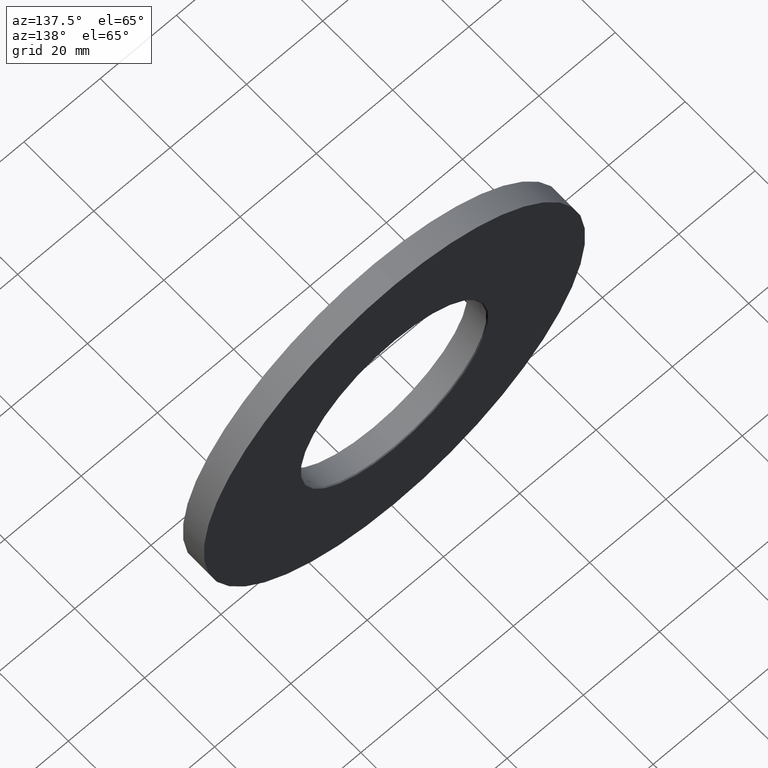
[diagram: clean part render]
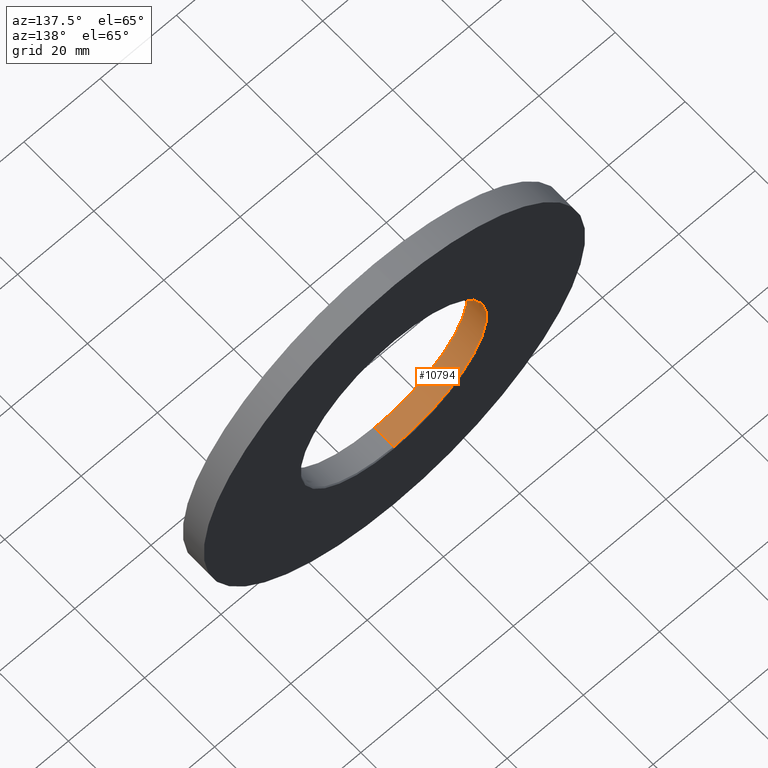
[diagram: same view with one face highlighted and labeled with its STEP entity id]
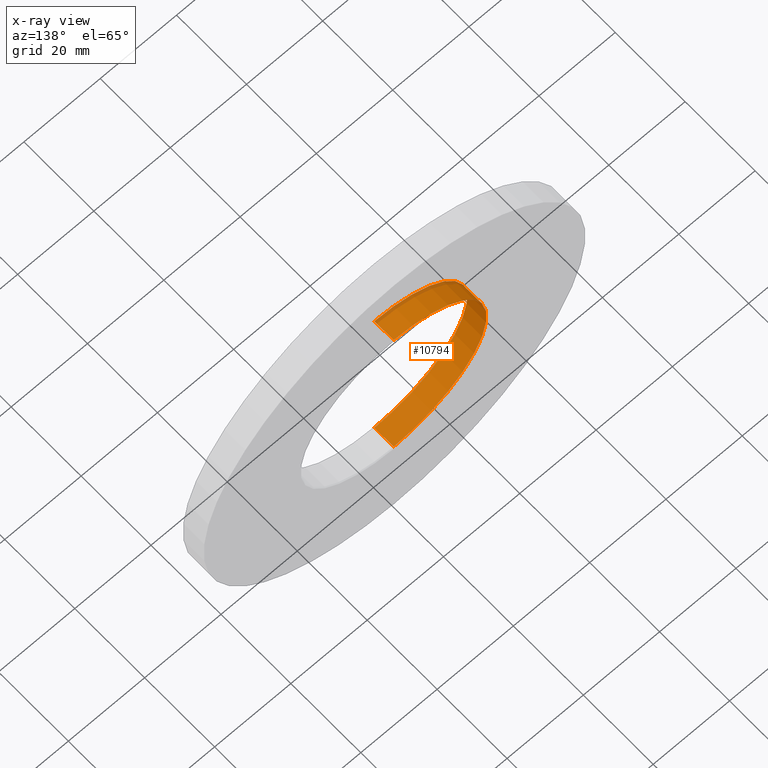
[diagram: x-ray of the same camera — body ghosted, the highlighted face saturated]
A machine part, auxiliary view. The second image highlights one B-rep face of the part: STEP entity #10794.
The next image is the same camera in x-ray: the body ghosted, the highlighted face saturated — about 5% of this face is hidden behind the body in this view.
In plain terms, the highlighted cylindrical surface (partial cylindrical patch) has radius 24.35 mm, axis along (-0, -1, -0).
Its self-contained STEP definition (entity closure, byte-faithful):
#831 = CYLINDRICAL_SURFACE ( 'NONE', #9463, 24.35000000000000497 ) ;
#930 = CARTESIAN_POINT ( 'NONE',  ( 0.000000000000000000, 0.2499999999999794054, -24.35000000000000497 ) ) ;
#1463 = CARTESIAN_POINT ( 'NONE',  ( 2.982014955923805433E-15, 0.2499999999999794054, 24.35000000000000497 ) ) ;
#1915 = VERTEX_POINT ( 'NONE', #6712 ) ;
#2774 = CIRCLE ( 'NONE', #10786, 24.35000000000000497 ) ;
#2882 = ORIENTED_EDGE ( 'NONE', *, *, #14010, .F. ) ;
#2972 = EDGE_CURVE ( 'NONE', #12051, #1915, #11053, .T. ) ;
#3407 = VERTEX_POINT ( 'NONE', #1463 ) ;
#3704 = DIRECTION ( 'NONE',  ( -0.000000000000000000, -1.000000000000000000, -0.000000000000000000 ) ) ;
#4200 = VECTOR ( 'NONE', #12942, 1000.000000000000000 ) ;
#5424 = AXIS2_PLACEMENT_3D ( 'NONE', #10277, #7026, #12614 ) ;
#5995 = DIRECTION ( 'NONE',  ( 0.000000000000000000, 0.000000000000000000, -1.000000000000000000 ) ) ;
#6016 = CARTESIAN_POINT ( 'NONE',  ( 0.000000000000000000, 0.2499999999999794054, 0.000000000000000000 ) ) ;
#6255 = LINE ( 'NONE', #7069, #13031 ) ;
#6577 = ORIENTED_EDGE ( 'NONE', *, *, #12437, .T. ) ;
#6712 = CARTESIAN_POINT ( 'NONE',  ( 2.982014955923805433E-15, 5.750000000000007105, 24.35000000000000497 ) ) ;
#6844 = EDGE_LOOP ( 'NONE', ( #13647, #13272, #6577, #2882 ) ) ;
#6896 = CARTESIAN_POINT ( 'NONE',  ( 0.000000000000000000, 5.750000000000007105, -24.35000000000000497 ) ) ;
#7026 = DIRECTION ( 'NONE',  ( 0.000000000000000000, 1.000000000000000000, 0.000000000000000000 ) ) ;
#7069 = CARTESIAN_POINT ( 'NONE',  ( 2.982014955923805433E-15, 6.000000000000000000, 24.35000000000000497 ) ) ;
#7155 = DIRECTION ( 'NONE',  ( 0.000000000000000000, 0.000000000000000000, 1.000000000000000000 ) ) ;
#7255 = LINE ( 'NONE', #14187, #4200 ) ;
#9463 = AXIS2_PLACEMENT_3D ( 'NONE', #10713, #3704, #5995 ) ;
#10120 = EDGE_CURVE ( 'NONE', #1915, #3407, #6255, .T. ) ;
#10277 = CARTESIAN_POINT ( 'NONE',  ( 0.000000000000000000, 5.750000000000007105, 0.000000000000000000 ) ) ;
#10713 = CARTESIAN_POINT ( 'NONE',  ( 0.000000000000000000, 6.000000000000000000, 0.000000000000000000 ) ) ;
#10786 = AXIS2_PLACEMENT_3D ( 'NONE', #6016, #13994, #7155 ) ;
#10794 = ADVANCED_FACE ( 'NONE', ( #12130 ), #831, .F. ) ;
#11053 = CIRCLE ( 'NONE', #5424, 24.35000000000000497 ) ;
#12051 = VERTEX_POINT ( 'NONE', #6896 ) ;
#12130 = FACE_OUTER_BOUND ( 'NONE', #6844, .T. ) ;
#12437 = EDGE_CURVE ( 'NONE', #3407, #13671, #2774, .T. ) ;
#12614 = DIRECTION ( 'NONE',  ( 0.000000000000000000, 0.000000000000000000, 1.000000000000000000 ) ) ;
#12707 = DIRECTION ( 'NONE',  ( -0.000000000000000000, -1.000000000000000000, -0.000000000000000000 ) ) ;
#12942 = DIRECTION ( 'NONE',  ( -0.000000000000000000, -1.000000000000000000, -0.000000000000000000 ) ) ;
#13031 = VECTOR ( 'NONE', #12707, 1000.000000000000000 ) ;
#13272 = ORIENTED_EDGE ( 'NONE', *, *, #10120, .T. ) ;
#13647 = ORIENTED_EDGE ( 'NONE', *, *, #2972, .T. ) ;
#13671 = VERTEX_POINT ( 'NONE', #930 ) ;
#13994 = DIRECTION ( 'NONE',  ( -0.000000000000000000, -1.000000000000000000, -0.000000000000000000 ) ) ;
#14010 = EDGE_CURVE ( 'NONE', #12051, #13671, #7255, .T. ) ;
#14187 = CARTESIAN_POINT ( 'NONE',  ( 0.000000000000000000, 6.000000000000000000, -24.35000000000000497 ) ) ;